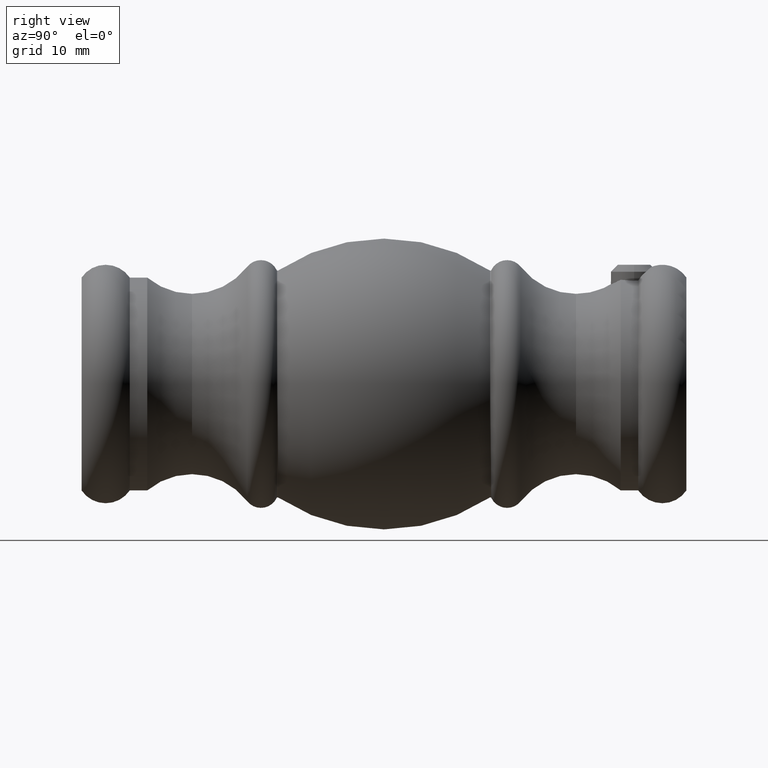
[diagram: clean part render]
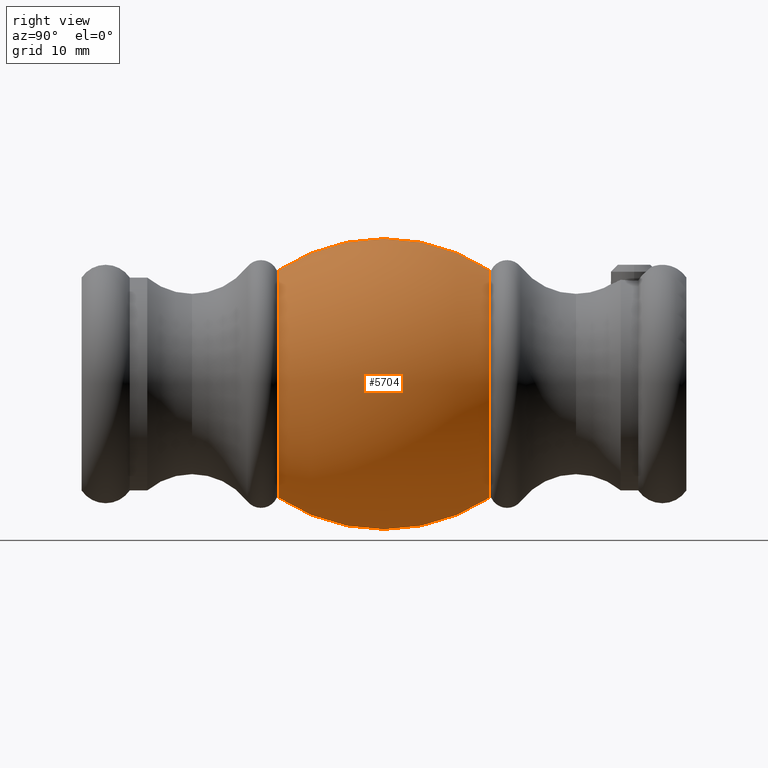
[diagram: same view with one face highlighted and labeled with its STEP entity id]
A machine part, right view. The second image highlights one B-rep face of the part: STEP entity #5704.
In plain terms, the highlighted toroidal blend (fillet) surface has major radius 3.9734 mm and minor (blend) radius 16.4734 mm.
Its self-contained STEP definition (entity closure, byte-faithful):
#71 = AXIS2_PLACEMENT_3D ( 'NONE', #11517, #11563, #4901 ) ;
#397 = CARTESIAN_POINT ( 'NONE',  ( 0.000000000000000000, 0.000000000000000000, 0.000000000000000000 ) ) ;
#523 = CARTESIAN_POINT ( 'NONE',  ( 0.000000000000000000, -9.087668581603962181, 9.766592814193652217 ) ) ;
#842 = DIRECTION ( 'NONE',  ( 0.000000000000000000, 0.000000000000000000, 1.000000000000000000 ) ) ;
#1263 = AXIS2_PLACEMENT_3D ( 'NONE', #7627, #5508, #13227 ) ;
#1265 = CIRCLE ( 'NONE', #3676, 9.766592814193650440 ) ;
#1383 = CIRCLE ( 'NONE', #71, 16.47343936902745298 ) ;
#1914 = CARTESIAN_POINT ( 'NONE',  ( 0.000000000000000000, 9.087668581603969287, 0.000000000000000000 ) ) ;
#2155 = AXIS2_PLACEMENT_3D ( 'NONE', #9588, #7615, #6502 ) ;
#2459 = ORIENTED_EDGE ( 'NONE', *, *, #13889, .T. ) ;
#2994 = AXIS2_PLACEMENT_3D ( 'NONE', #397, #3849, #5030 ) ;
#3158 = VERTEX_POINT ( 'NONE', #3438 ) ;
#3438 = CARTESIAN_POINT ( 'NONE',  ( 0.000000000000000000, 9.087668581603969287, 9.766592814193653993 ) ) ;
#3614 = ORIENTED_EDGE ( 'NONE', *, *, #10894, .T. ) ;
#3636 = VERTEX_POINT ( 'NONE', #523 ) ;
#3676 = AXIS2_PLACEMENT_3D ( 'NONE', #1914, #7503, #842 ) ;
#3849 = DIRECTION ( 'NONE',  ( -0.000000000000000000, 1.000000000000000000, -0.000000000000000000 ) ) ;
#4411 = EDGE_LOOP ( 'NONE', ( #3614, #2459, #5718, #11411 ) ) ;
#4901 = DIRECTION ( 'NONE',  ( 1.224646799147353207E-16, 0.000000000000000000, -1.000000000000000000 ) ) ;
#5030 = DIRECTION ( 'NONE',  ( 0.000000000000000000, 0.000000000000000000, 1.000000000000000000 ) ) ;
#5287 = CIRCLE ( 'NONE', #1263, 9.766592814193652217 ) ;
#5508 = DIRECTION ( 'NONE',  ( -0.000000000000000000, 1.000000000000000000, -0.000000000000000000 ) ) ;
#5704 = ADVANCED_FACE ( 'NONE', ( #8644 ), #13980, .T. ) ;
#5718 = ORIENTED_EDGE ( 'NONE', *, *, #10114, .F. ) ;
#5898 = VERTEX_POINT ( 'NONE', #6783 ) ;
#6425 = CARTESIAN_POINT ( 'NONE',  ( 1.196062662847779849E-15, 9.087668581603969287, -9.766592814193653993 ) ) ;
#6502 = DIRECTION ( 'NONE',  ( 0.000000000000000000, 0.000000000000000000, 1.000000000000000000 ) ) ;
#6783 = CARTESIAN_POINT ( 'NONE',  ( 1.196062662847779849E-15, -9.087668581603962181, -9.766592814193652217 ) ) ;
#7069 = EDGE_CURVE ( 'NONE', #3636, #3158, #7912, .T. ) ;
#7503 = DIRECTION ( 'NONE',  ( -0.000000000000000000, 1.000000000000000000, -0.000000000000000000 ) ) ;
#7615 = DIRECTION ( 'NONE',  ( -1.000000000000000000, 0.000000000000000000, 0.000000000000000000 ) ) ;
#7627 = CARTESIAN_POINT ( 'NONE',  ( 0.000000000000000000, -9.087668581603962181, 0.000000000000000000 ) ) ;
#7912 = CIRCLE ( 'NONE', #2155, 16.47343936902745298 ) ;
#8644 = FACE_OUTER_BOUND ( 'NONE', #4411, .T. ) ;
#9588 = CARTESIAN_POINT ( 'NONE',  ( 0.000000000000000000, 0.000000000000000000, -3.973439369027452983 ) ) ;
#10114 = EDGE_CURVE ( 'NONE', #3158, #10820, #1265, .T. ) ;
#10820 = VERTEX_POINT ( 'NONE', #6425 ) ;
#10894 = EDGE_CURVE ( 'NONE', #3636, #5898, #5287, .T. ) ;
#11411 = ORIENTED_EDGE ( 'NONE', *, *, #7069, .F. ) ;
#11517 = CARTESIAN_POINT ( 'NONE',  ( -4.866059804885549364E-16, 0.000000000000000000, 3.973439369027452983 ) ) ;
#11563 = DIRECTION ( 'NONE',  ( 1.000000000000000000, 0.000000000000000000, 1.224646799147353207E-16 ) ) ;
#13227 = DIRECTION ( 'NONE',  ( 0.000000000000000000, 0.000000000000000000, 1.000000000000000000 ) ) ;
#13889 = EDGE_CURVE ( 'NONE', #5898, #10820, #1383, .T. ) ;
#13980 = TOROIDAL_SURFACE ( 'NONE', #2994, -3.973439369027452983, 16.47343936902745298 ) ;